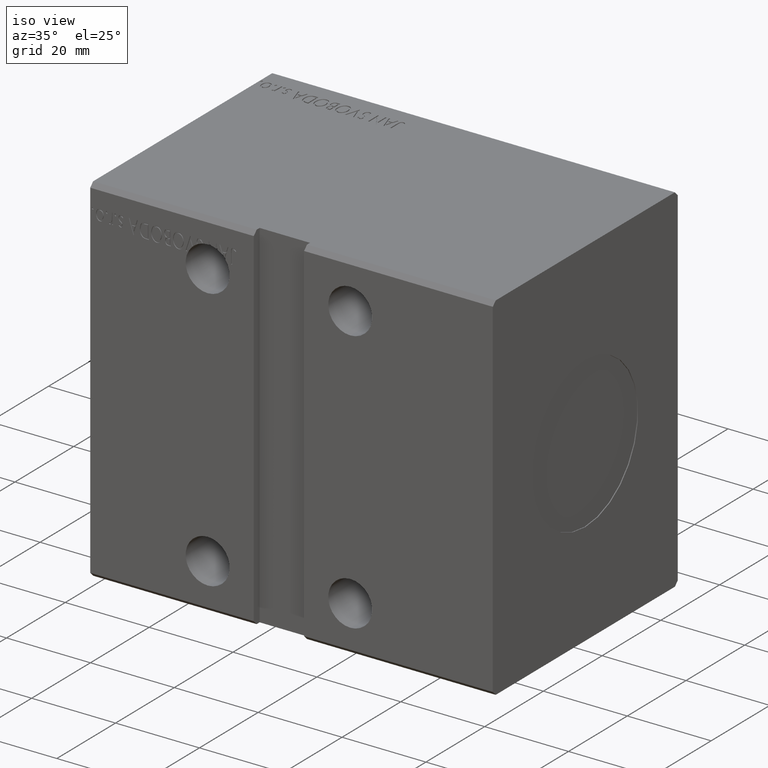
[diagram: clean part render]
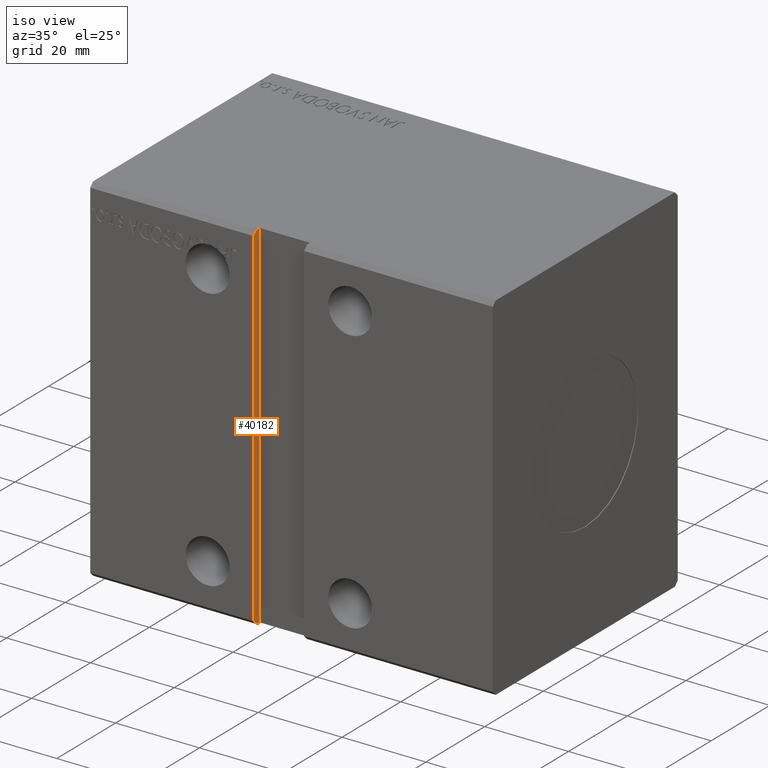
[diagram: same view with one face highlighted and labeled with its STEP entity id]
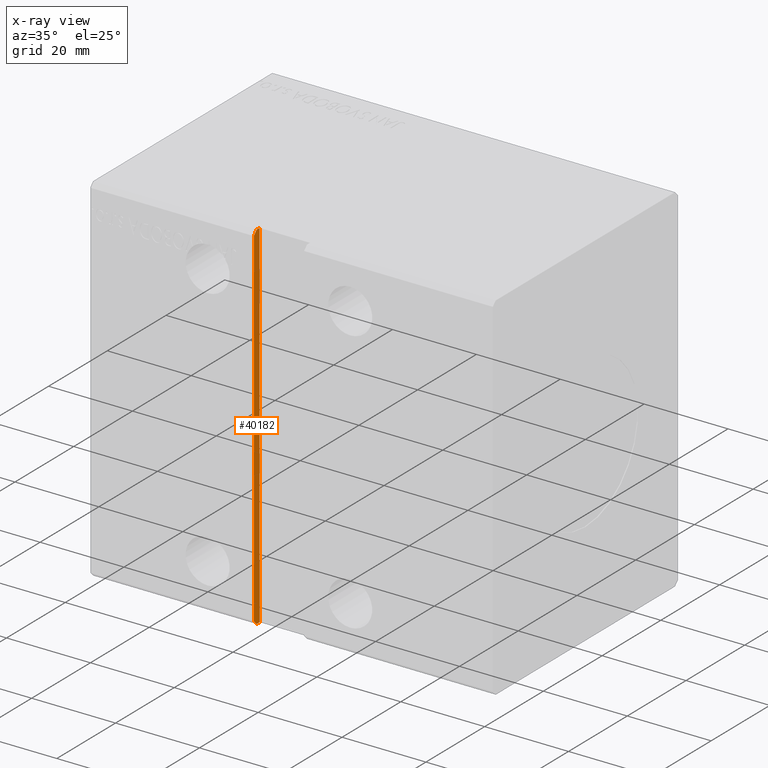
[diagram: x-ray of the same camera — body ghosted, the highlighted face saturated]
A machine part, iso view. The second image highlights one B-rep face of the part: STEP entity #40182.
The next image is the same camera in x-ray: the body ghosted, the highlighted face saturated — about 0% of this face is hidden behind the body in this view.
In plain terms, the highlighted planar face has unit normal (-1, 0, -0).
Its self-contained STEP definition (entity closure, byte-faithful):
#430 = CARTESIAN_POINT ( 'NONE',  ( 39.00000000000000000, -31.50000000000000000, 42.49999999999999289 ) ) ;
#945 = ORIENTED_EDGE ( 'NONE', *, *, #12892, .T. ) ;
#2226 = EDGE_LOOP ( 'NONE', ( #945, #30104, #12724, #31891, #6388, #10468 ) ) ;
#4899 = VERTEX_POINT ( 'NONE', #6648 ) ;
#5559 = CARTESIAN_POINT ( 'NONE',  ( 39.00000000000001421, -31.49999999999999289, -41.50000000000001421 ) ) ;
#5663 = CARTESIAN_POINT ( 'NONE',  ( 39.00000000000001421, -29.50000000000000000, -42.50000000000000711 ) ) ;
#5794 = EDGE_CURVE ( 'NONE', #38879, #4899, #28611, .T. ) ;
#5850 = VERTEX_POINT ( 'NONE', #7674 ) ;
#6370 = VECTOR ( 'NONE', #15299, 1000.000000000000000 ) ;
#6388 = ORIENTED_EDGE ( 'NONE', *, *, #20349, .T. ) ;
#6648 = CARTESIAN_POINT ( 'NONE',  ( 39.00000000000000000, -30.50000000000000355, 42.49999999999999289 ) ) ;
#7674 = CARTESIAN_POINT ( 'NONE',  ( 39.00000000000000000, -31.50000000000000000, -41.50000000000000711 ) ) ;
#9842 = PLANE ( 'NONE',  #29332 ) ;
#10468 = ORIENTED_EDGE ( 'NONE', *, *, #5794, .F. ) ;
#10926 = DIRECTION ( 'NONE',  ( -0.000000000000000000, -1.000000000000000000, -5.507058653894625237E-17 ) ) ;
#11679 = LINE ( 'NONE', #20804, #20529 ) ;
#12724 = ORIENTED_EDGE ( 'NONE', *, *, #25620, .F. ) ;
#12892 = EDGE_CURVE ( 'NONE', #38879, #5850, #19065, .T. ) ;
#14635 = EDGE_CURVE ( 'NONE', #17741, #26641, #34159, .T. ) ;
#15299 = DIRECTION ( 'NONE',  ( 1.632680918566406547E-16, 0.000000000000000000, -1.000000000000000000 ) ) ;
#15647 = DIRECTION ( 'NONE',  ( -1.000000000000000000, 8.991269581639754713E-33, -1.632680918566406547E-16 ) ) ;
#16557 = DIRECTION ( 'NONE',  ( 1.632680918566406547E-16, 0.000000000000000000, -1.000000000000000000 ) ) ;
#17741 = VERTEX_POINT ( 'NONE', #39799 ) ;
#19065 = LINE ( 'NONE', #430, #35465 ) ;
#20349 = EDGE_CURVE ( 'NONE', #17741, #4899, #20675, .T. ) ;
#20529 = VECTOR ( 'NONE', #27426, 1000.000000000000000 ) ;
#20675 = LINE ( 'NONE', #29573, #38245 ) ;
#20804 = CARTESIAN_POINT ( 'NONE',  ( 39.00000000000001421, -29.50000000000000000, -42.50000000000000711 ) ) ;
#22133 = CARTESIAN_POINT ( 'NONE',  ( 39.00000000000000000, -29.50000000000000000, 42.49999999999999289 ) ) ;
#22379 = CARTESIAN_POINT ( 'NONE',  ( 39.00000000000000000, -31.50000000000000000, 41.49999999999999289 ) ) ;
#22387 = VERTEX_POINT ( 'NONE', #28708 ) ;
#22487 = DIRECTION ( 'NONE',  ( -1.632680918566406547E-16, 0.000000000000000000, 1.000000000000000000 ) ) ;
#24394 = DIRECTION ( 'NONE',  ( -1.154479749032191444E-16, -0.7071067811865451302, 0.7071067811865500152 ) ) ;
#24551 = VECTOR ( 'NONE', #35242, 1000.000000000000000 ) ;
#25620 = EDGE_CURVE ( 'NONE', #26641, #22387, #11679, .T. ) ;
#26102 = CARTESIAN_POINT ( 'NONE',  ( 39.00000000000000000, -30.50000000000000711, 42.49999999999998579 ) ) ;
#26641 = VERTEX_POINT ( 'NONE', #5663 ) ;
#27171 = VECTOR ( 'NONE', #24394, 1000.000000000000114 ) ;
#27304 = LINE ( 'NONE', #5559, #27171 ) ;
#27426 = DIRECTION ( 'NONE',  ( -0.000000000000000000, -1.000000000000000000, -5.507058653894625237E-17 ) ) ;
#28611 = LINE ( 'NONE', #26102, #24551 ) ;
#28708 = CARTESIAN_POINT ( 'NONE',  ( 39.00000000000001421, -30.50000000000000711, -42.50000000000000711 ) ) ;
#29332 = AXIS2_PLACEMENT_3D ( 'NONE', #31208, #15647, #22487 ) ;
#29573 = CARTESIAN_POINT ( 'NONE',  ( 39.00000000000000000, -29.50000000000000000, 42.49999999999999289 ) ) ;
#30104 = ORIENTED_EDGE ( 'NONE', *, *, #32819, .F. ) ;
#31208 = CARTESIAN_POINT ( 'NONE',  ( 39.00000000000000000, -29.50000000000000000, 42.49999999999999289 ) ) ;
#31891 = ORIENTED_EDGE ( 'NONE', *, *, #14635, .F. ) ;
#32819 = EDGE_CURVE ( 'NONE', #22387, #5850, #27304, .T. ) ;
#34159 = LINE ( 'NONE', #22133, #6370 ) ;
#34714 = FACE_OUTER_BOUND ( 'NONE', #2226, .T. ) ;
#35242 = DIRECTION ( 'NONE',  ( -1.154479749032189471E-16, 0.7071067811865463515, 0.7071067811865487940 ) ) ;
#35465 = VECTOR ( 'NONE', #16557, 1000.000000000000000 ) ;
#38245 = VECTOR ( 'NONE', #10926, 1000.000000000000000 ) ;
#38879 = VERTEX_POINT ( 'NONE', #22379 ) ;
#39799 = CARTESIAN_POINT ( 'NONE',  ( 39.00000000000000000, -29.50000000000000000, 42.49999999999999289 ) ) ;
#40182 = ADVANCED_FACE ( 'NONE', ( #34714 ), #9842, .F. ) ;